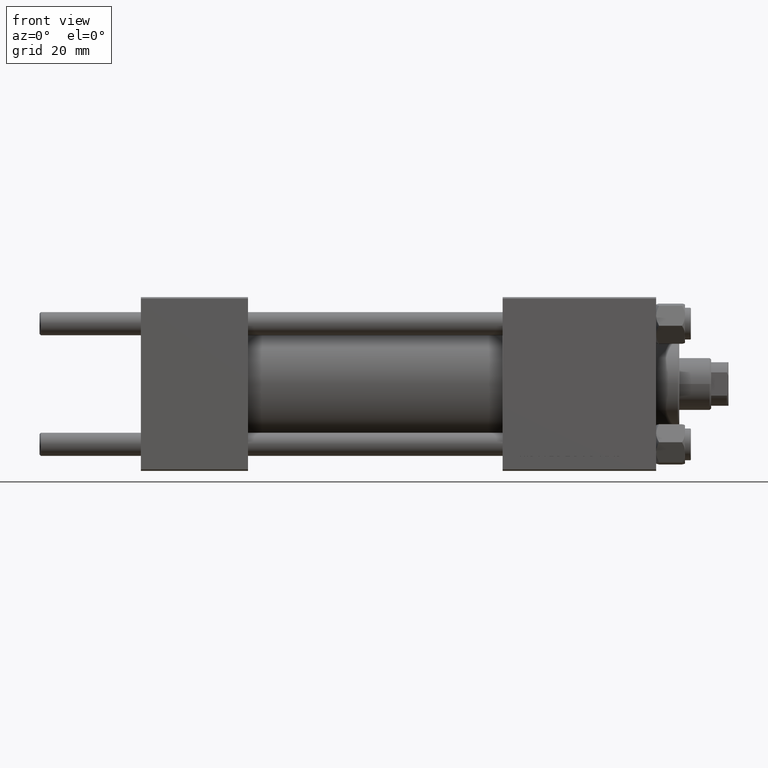
[diagram: clean part render]
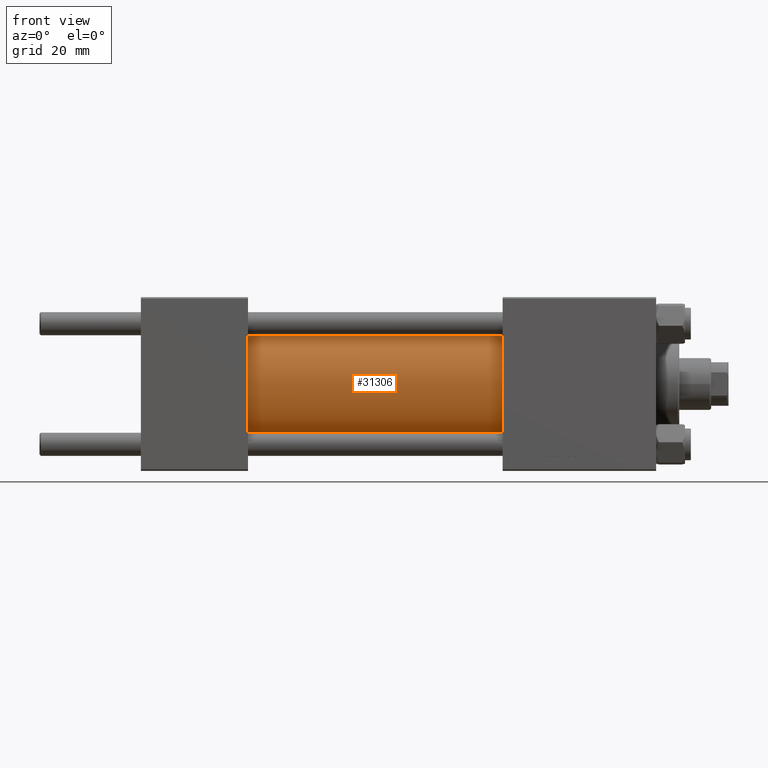
[diagram: same view with one face highlighted and labeled with its STEP entity id]
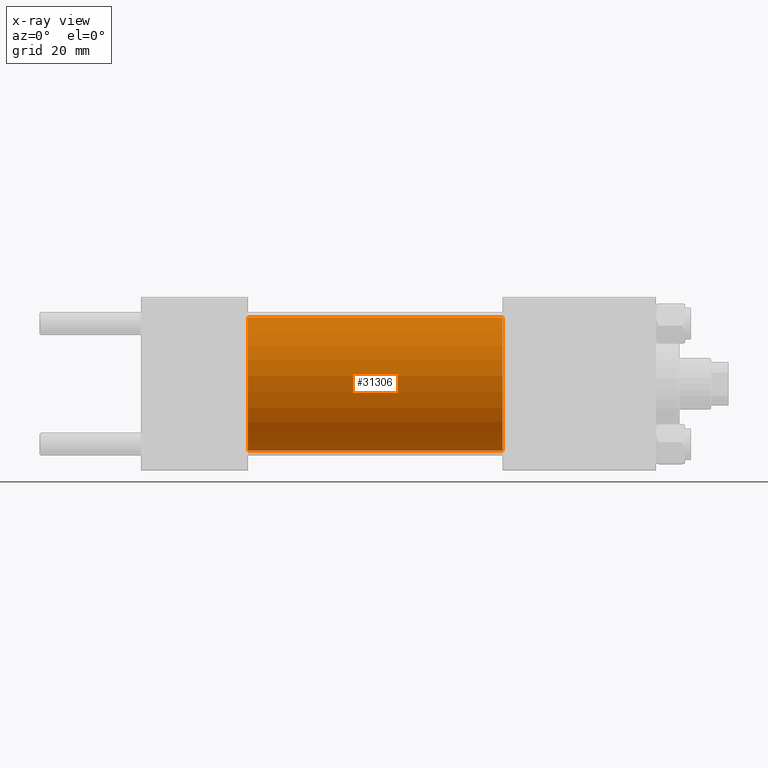
[diagram: x-ray of the same camera — body ghosted, the highlighted face saturated]
A machine part, front view. The second image highlights one B-rep face of the part: STEP entity #31306.
The next image is the same camera in x-ray: the body ghosted, the highlighted face saturated — about 0% of this face is hidden behind the body in this view.
In plain terms, the highlighted cylindrical surface (partial cylindrical patch) has radius 23 mm, axis along (-1, -0, -0).
Its self-contained STEP definition (entity closure, byte-faithful):
#49 = DIRECTION ( 'NONE',  ( 0.000000000000000000, 0.000000000000000000, -1.000000000000000000 ) ) ;
#1233 = CYLINDRICAL_SURFACE ( 'NONE', #15621, 23.00000000000000000 ) ;
#1882 = ORIENTED_EDGE ( 'NONE', *, *, #10566, .T. ) ;
#1902 = EDGE_CURVE ( 'NONE', #26966, #25665, #27487, .T. ) ;
#5293 = CARTESIAN_POINT ( 'NONE',  ( 37.00000000000000711, 0.000000000000000000, 23.00000000000000000 ) ) ;
#5907 = VECTOR ( 'NONE', #46506, 1000.000000000000000 ) ;
#6991 = ORIENTED_EDGE ( 'NONE', *, *, #36314, .F. ) ;
#9061 = DIRECTION ( 'NONE',  ( -1.000000000000000000, -0.000000000000000000, -0.000000000000000000 ) ) ;
#9318 = CIRCLE ( 'NONE', #47294, 23.00000000000000000 ) ;
#9916 = EDGE_CURVE ( 'NONE', #12752, #32193, #19412, .T. ) ;
#10566 = EDGE_CURVE ( 'NONE', #25665, #32193, #12383, .T. ) ;
#11442 = CARTESIAN_POINT ( 'NONE',  ( 125.0000000000000000, 0.000000000000000000, 0.000000000000000000 ) ) ;
#12383 = CIRCLE ( 'NONE', #21245, 23.00000000000000000 ) ;
#12752 = VERTEX_POINT ( 'NONE', #42180 ) ;
#13439 = ORIENTED_EDGE ( 'NONE', *, *, #9916, .F. ) ;
#15621 = AXIS2_PLACEMENT_3D ( 'NONE', #16662, #9061, #47777 ) ;
#16504 = DIRECTION ( 'NONE',  ( 1.000000000000000000, -0.000000000000000000, 0.000000000000000000 ) ) ;
#16662 = CARTESIAN_POINT ( 'NONE',  ( 125.0000000000000000, 0.000000000000000000, 0.000000000000000000 ) ) ;
#19412 = LINE ( 'NONE', #20153, #5907 ) ;
#20153 = CARTESIAN_POINT ( 'NONE',  ( 125.0000000000000000, 2.816687638038912352E-15, -23.00000000000000000 ) ) ;
#20366 = DIRECTION ( 'NONE',  ( -1.000000000000000000, -0.000000000000000000, -0.000000000000000000 ) ) ;
#21245 = AXIS2_PLACEMENT_3D ( 'NONE', #24833, #16504, #40034 ) ;
#21635 = EDGE_LOOP ( 'NONE', ( #13439, #6991, #45962, #1882 ) ) ;
#23449 = CARTESIAN_POINT ( 'NONE',  ( 37.00000000000000711, 2.816687638038912352E-15, -23.00000000000000000 ) ) ;
#24833 = CARTESIAN_POINT ( 'NONE',  ( 37.00000000000000711, 0.000000000000000000, 0.000000000000000000 ) ) ;
#25665 = VERTEX_POINT ( 'NONE', #5293 ) ;
#26966 = VERTEX_POINT ( 'NONE', #46834 ) ;
#27487 = LINE ( 'NONE', #43667, #38794 ) ;
#31306 = ADVANCED_FACE ( 'NONE', ( #43248 ), #1233, .T. ) ;
#32193 = VERTEX_POINT ( 'NONE', #23449 ) ;
#34732 = DIRECTION ( 'NONE',  ( 1.000000000000000000, 0.000000000000000000, 0.000000000000000000 ) ) ;
#36314 = EDGE_CURVE ( 'NONE', #26966, #12752, #9318, .T. ) ;
#38794 = VECTOR ( 'NONE', #20366, 1000.000000000000000 ) ;
#40034 = DIRECTION ( 'NONE',  ( 0.000000000000000000, 0.000000000000000000, 1.000000000000000000 ) ) ;
#42180 = CARTESIAN_POINT ( 'NONE',  ( 125.0000000000000000, 2.816687638038912352E-15, -23.00000000000000000 ) ) ;
#43248 = FACE_OUTER_BOUND ( 'NONE', #21635, .T. ) ;
#43667 = CARTESIAN_POINT ( 'NONE',  ( 125.0000000000000000, 0.000000000000000000, 23.00000000000000000 ) ) ;
#45962 = ORIENTED_EDGE ( 'NONE', *, *, #1902, .T. ) ;
#46506 = DIRECTION ( 'NONE',  ( -1.000000000000000000, -0.000000000000000000, -0.000000000000000000 ) ) ;
#46834 = CARTESIAN_POINT ( 'NONE',  ( 125.0000000000000000, 0.000000000000000000, 23.00000000000000000 ) ) ;
#47294 = AXIS2_PLACEMENT_3D ( 'NONE', #11442, #34732, #49 ) ;
#47777 = DIRECTION ( 'NONE',  ( 0.000000000000000000, 0.000000000000000000, 1.000000000000000000 ) ) ;